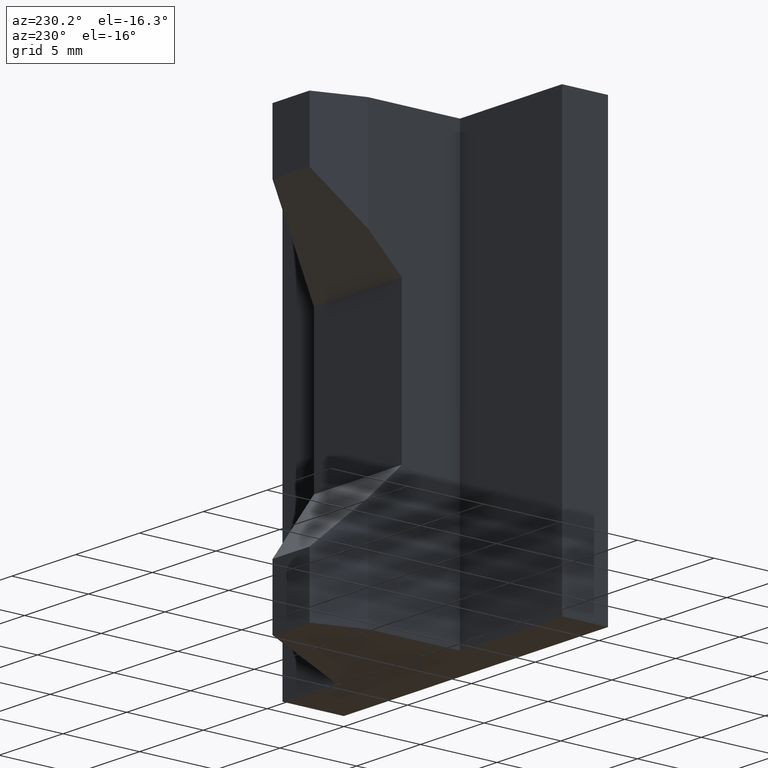
[diagram: clean part render]
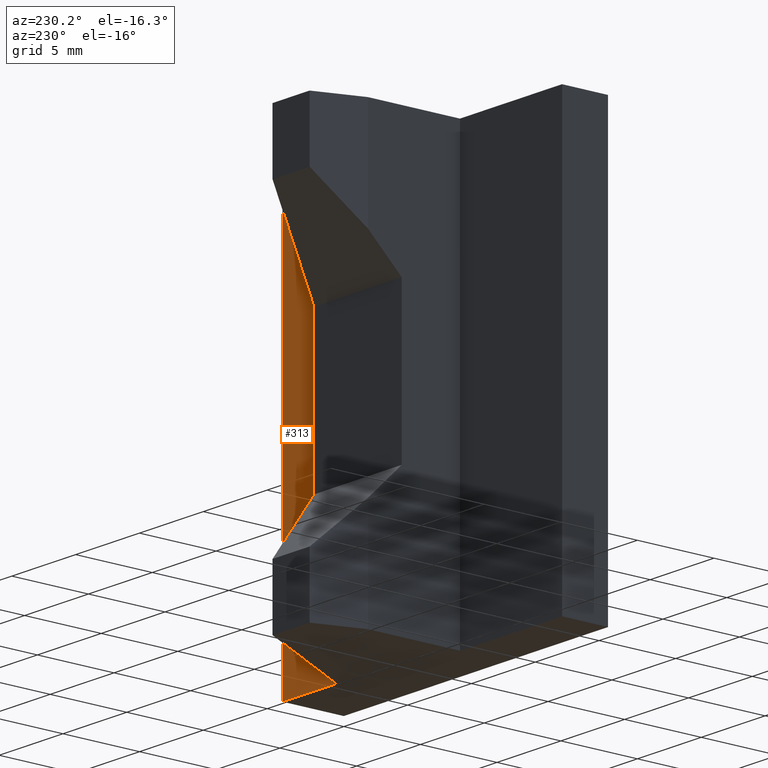
[diagram: same view with one face highlighted and labeled with its STEP entity id]
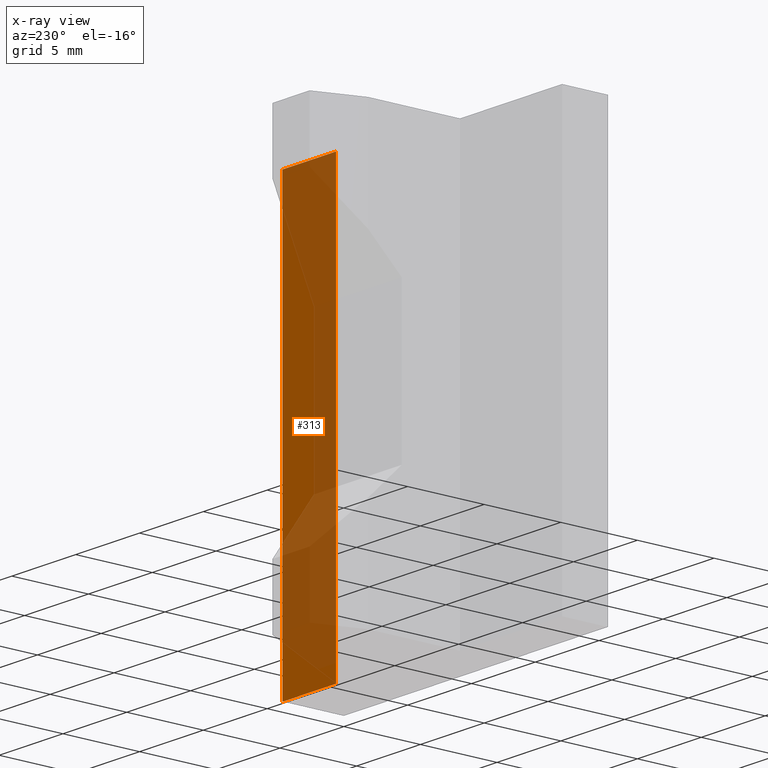
[diagram: x-ray of the same camera — body ghosted, the highlighted face saturated]
A machine part, auxiliary view. The second image highlights one B-rep face of the part: STEP entity #313.
The next image is the same camera in x-ray: the body ghosted, the highlighted face saturated — about 65% of this face is hidden behind the body in this view.
In plain terms, the highlighted planar face has unit normal (-0, 1, 0).
Its self-contained STEP definition (entity closure, byte-faithful):
#27=FACE_OUTER_BOUND('',#43,.T.);
#43=EDGE_LOOP('',(#264,#265,#266,#267));
#77=LINE('',#495,#119);
#83=LINE('',#507,#125);
#84=LINE('',#510,#126);
#85=LINE('',#511,#127);
#119=VECTOR('',#406,10.);
#125=VECTOR('',#418,10.);
#126=VECTOR('',#421,10.);
#127=VECTOR('',#422,10.);
#150=VERTEX_POINT('',#486);
#153=VERTEX_POINT('',#493);
#156=VERTEX_POINT('',#505);
#157=VERTEX_POINT('',#509);
#189=EDGE_CURVE('',#150,#153,#77,.T.);
#195=EDGE_CURVE('',#156,#153,#83,.T.);
#196=EDGE_CURVE('',#156,#157,#84,.T.);
#197=EDGE_CURVE('',#157,#150,#85,.T.);
#264=ORIENTED_EDGE('',*,*,#196,.T.);
#265=ORIENTED_EDGE('',*,*,#197,.T.);
#266=ORIENTED_EDGE('',*,*,#189,.T.);
#267=ORIENTED_EDGE('',*,*,#195,.F.);
#297=PLANE('',#352);
#313=ADVANCED_FACE('',(#27),#297,.T.);
#352=AXIS2_PLACEMENT_3D('',#508,#419,#420);
#406=DIRECTION('',(-1.,-5.28677630773884E-16,0.));
#418=DIRECTION('',(0.,0.,-1.));
#419=DIRECTION('center_axis',(-5.28677630773884E-16,1.,0.));
#420=DIRECTION('ref_axis',(0.,0.,1.));
#421=DIRECTION('',(1.,5.28677630773884E-16,0.));
#422=DIRECTION('',(0.,0.,-1.));
#486=CARTESIAN_POINT('',(-1.11022302462516E-15,4.,-13.9));
#493=CARTESIAN_POINT('',(-4.2,3.99999999999999,-13.9));
#495=CARTESIAN_POINT('',(-4.2,3.99999999999999,-13.9));
#505=CARTESIAN_POINT('',(-4.2,3.99999999999999,13.9));
#507=CARTESIAN_POINT('',(-4.2,3.99999999999999,0.));
#508=CARTESIAN_POINT('Origin',(-4.2,3.99999999999999,0.));
#509=CARTESIAN_POINT('',(-1.11022302462516E-15,4.,13.9));
#510=CARTESIAN_POINT('',(-4.2,3.99999999999999,13.9));
#511=CARTESIAN_POINT('',(-1.11022302462516E-15,4.,0.));